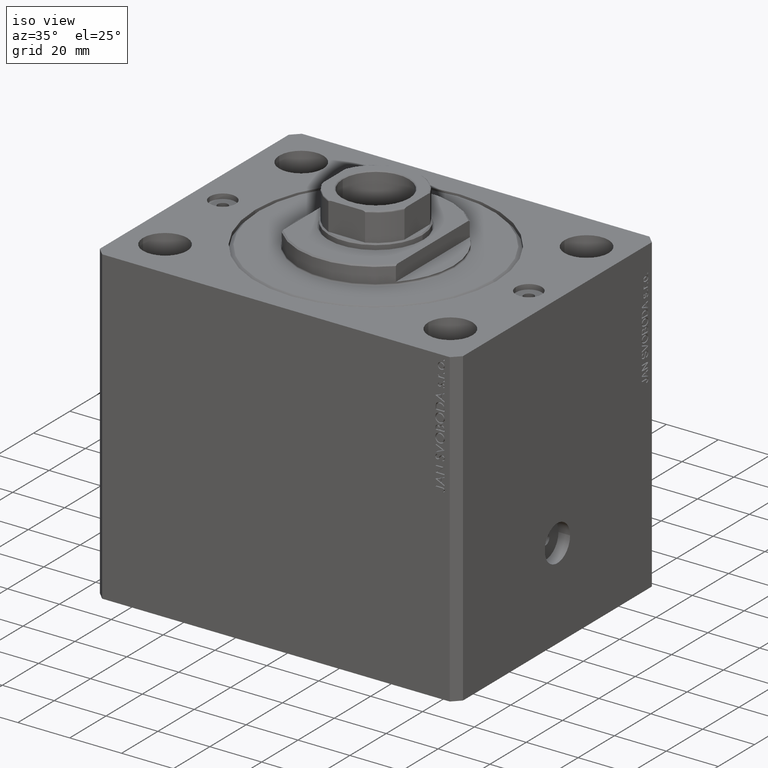
[diagram: clean part render]
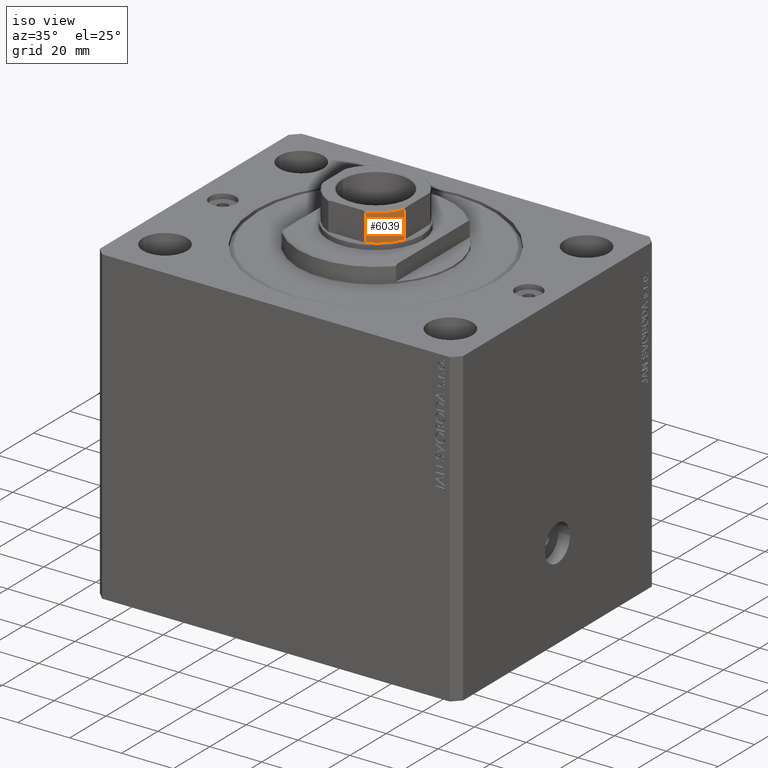
[diagram: same view with one face highlighted and labeled with its STEP entity id]
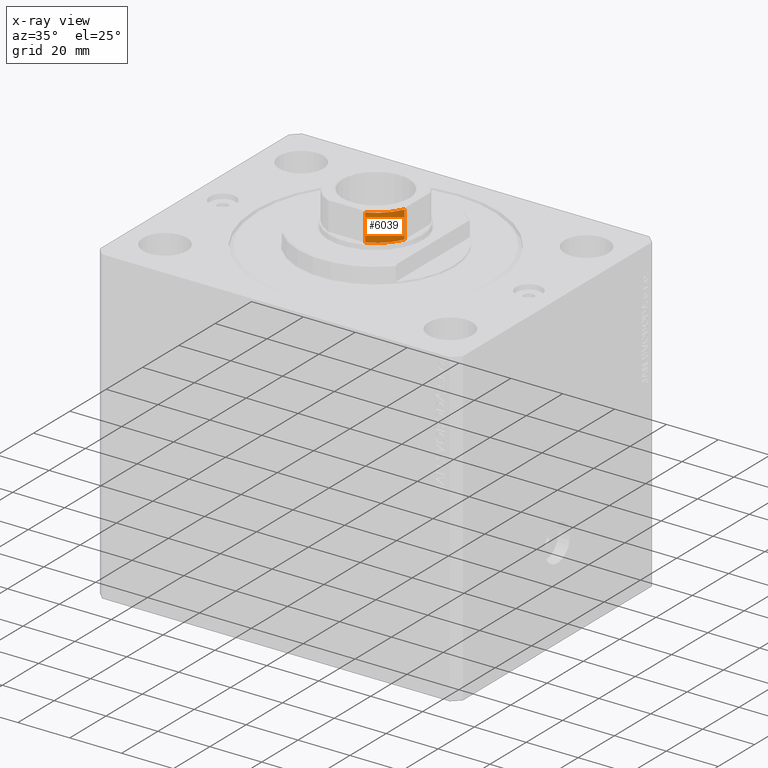
[diagram: x-ray of the same camera — body ghosted, the highlighted face saturated]
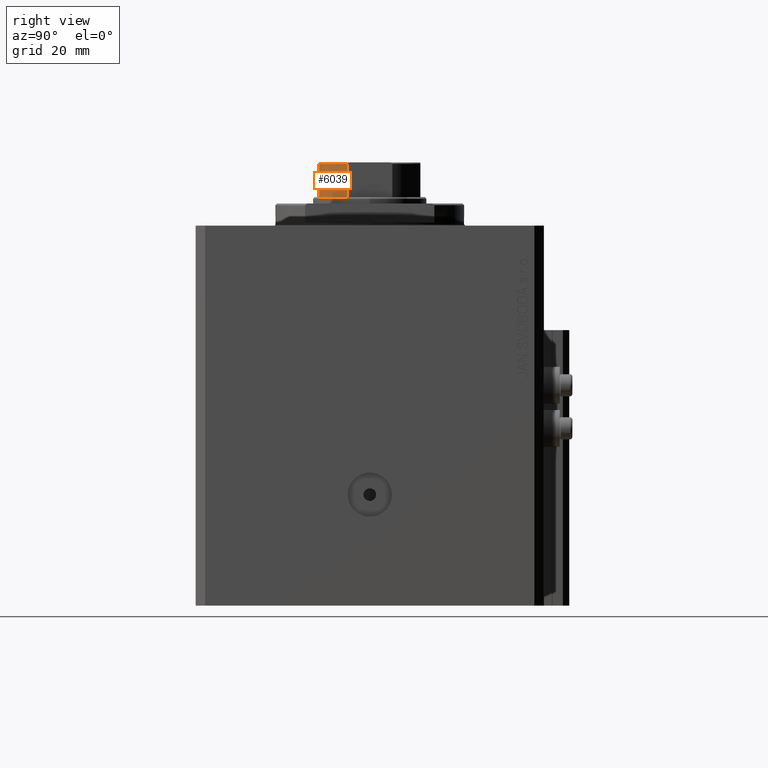
[diagram: same view with one face highlighted and labeled with its STEP entity id]
A machine part, iso view. The second image highlights one B-rep face of the part: STEP entity #6039.
The next image is the same camera in x-ray: the body ghosted, the highlighted face saturated — about 0% of this face is hidden behind the body in this view.
A second angle (right view) of the same face is appended — the face is thin or edge-on in the first view.
In plain terms, the highlighted cylindrical surface (partial cylindrical patch) has radius 17.5 mm, axis along (0, 0, 1).
Its self-contained STEP definition (entity closure, byte-faithful):
#1022 = EDGE_CURVE ( 'NONE', #10202, #40276, #2852, .T. ) ;
#1356 = DIRECTION ( 'NONE',  ( -0.000000000000000000, -0.000000000000000000, 1.000000000000000000 ) ) ;
#1710 = DIRECTION ( 'NONE',  ( 0.000000000000000000, -0.000000000000000000, -1.000000000000000000 ) ) ;
#2852 = LINE ( 'NONE', #43204, #3399 ) ;
#3399 = VECTOR ( 'NONE', #17425, 1000.000000000000000 ) ;
#3804 = EDGE_CURVE ( 'NONE', #10202, #40412, #20243, .T. ) ;
#5078 = EDGE_LOOP ( 'NONE', ( #39686, #6496, #47019, #5716 ) ) ;
#5310 = VECTOR ( 'NONE', #1356, 1000.000000000000000 ) ;
#5716 = ORIENTED_EDGE ( 'NONE', *, *, #3804, .T. ) ;
#6039 = ADVANCED_FACE ( 'NONE', ( #11515 ), #26075, .T. ) ;
#6496 = ORIENTED_EDGE ( 'NONE', *, *, #34377, .T. ) ;
#7925 = CARTESIAN_POINT ( 'NONE',  ( 0.000000000000000000, 0.000000000000000000, -0.001000000000001000089 ) ) ;
#10202 = VERTEX_POINT ( 'NONE', #43062 ) ;
#10987 = CARTESIAN_POINT ( 'NONE',  ( 15.99999999999999645, -7.088723439378925129, 104.0000000000000284 ) ) ;
#11515 = FACE_OUTER_BOUND ( 'NONE', #5078, .T. ) ;
#14895 = AXIS2_PLACEMENT_3D ( 'NONE', #15479, #30506, #30032 ) ;
#15479 = CARTESIAN_POINT ( 'NONE',  ( 0.000000000000000000, 0.000000000000000000, 104.0000000000000142 ) ) ;
#16285 = DIRECTION ( 'NONE',  ( 1.000000000000000000, 0.000000000000000000, 0.000000000000000000 ) ) ;
#17425 = DIRECTION ( 'NONE',  ( -0.000000000000000000, -0.000000000000000000, 1.000000000000000000 ) ) ;
#20243 = CIRCLE ( 'NONE', #14895, 17.50000000000001421 ) ;
#20957 = AXIS2_PLACEMENT_3D ( 'NONE', #7925, #37059, #39701 ) ;
#22007 = CIRCLE ( 'NONE', #33408, 17.50000000000000000 ) ;
#24272 = LINE ( 'NONE', #38835, #5310 ) ;
#26075 = CYLINDRICAL_SURFACE ( 'NONE', #20957, 17.50000000000000000 ) ;
#30032 = DIRECTION ( 'NONE',  ( 1.000000000000000000, 0.000000000000000000, 0.000000000000000000 ) ) ;
#30506 = DIRECTION ( 'NONE',  ( 0.000000000000000000, 0.000000000000000000, 1.000000000000000000 ) ) ;
#32974 = VERTEX_POINT ( 'NONE', #33604 ) ;
#33408 = AXIS2_PLACEMENT_3D ( 'NONE', #34427, #1710, #16285 ) ;
#33604 = CARTESIAN_POINT ( 'NONE',  ( 15.99999999999999645, -7.088723439378925129, 114.5000000000000000 ) ) ;
#34377 = EDGE_CURVE ( 'NONE', #32974, #40276, #22007, .T. ) ;
#34427 = CARTESIAN_POINT ( 'NONE',  ( 0.000000000000000000, 0.000000000000000000, 114.5000000000000000 ) ) ;
#36709 = EDGE_CURVE ( 'NONE', #40412, #32974, #24272, .T. ) ;
#37059 = DIRECTION ( 'NONE',  ( -0.000000000000000000, -0.000000000000000000, 1.000000000000000000 ) ) ;
#38835 = CARTESIAN_POINT ( 'NONE',  ( 15.99999999999999645, -7.088723439378925129, -0.001000000000001000089 ) ) ;
#39162 = CARTESIAN_POINT ( 'NONE',  ( 7.088723439378916247, -16.00000000000000000, 114.5000000000000000 ) ) ;
#39686 = ORIENTED_EDGE ( 'NONE', *, *, #36709, .T. ) ;
#39701 = DIRECTION ( 'NONE',  ( 1.000000000000000000, 0.000000000000000000, 0.000000000000000000 ) ) ;
#40276 = VERTEX_POINT ( 'NONE', #39162 ) ;
#40412 = VERTEX_POINT ( 'NONE', #10987 ) ;
#43062 = CARTESIAN_POINT ( 'NONE',  ( 7.088723439378916247, -16.00000000000000000, 104.0000000000000284 ) ) ;
#43204 = CARTESIAN_POINT ( 'NONE',  ( 7.088723439378916247, -16.00000000000000000, -0.001000000000001000089 ) ) ;
#47019 = ORIENTED_EDGE ( 'NONE', *, *, #1022, .F. ) ;